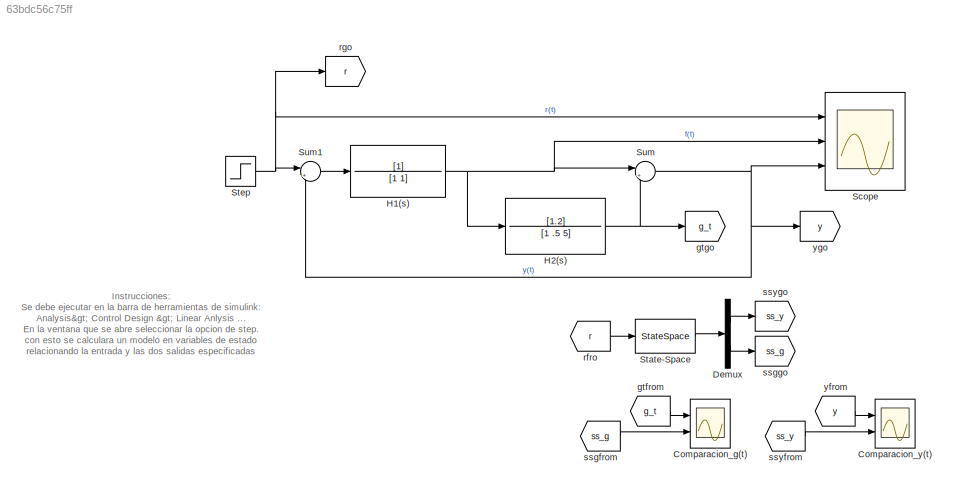
MODEL slx_63bdc56c75ff
KIND model
CONFIG AbsTol = auto
CONFIG EnableMultiTasking = off
CONFIG FixedStep = auto
CONFIG MaxStep = .1
CONFIG MinStep = auto
CONFIG RelTol = 1e-3
CONFIG SampleTimeConstraint = Unconstrained
CONFIG Solver = VariableStepAuto
CONFIG SolverName = VariableStepAuto
CONFIG StartTime = 0.0
CONFIG StopTime = 20
BLOCK [Scope] Comparacion_g(t)
  NumInputPorts = 2
  Ports = [2]
  ScopeSpecificationString = Simulink.scopes.TimeScopeBlockCfg('CurrentConfiguration', extmgr.ConfigurationSet(extmgr.Configuration('Core','General UI',true),extmgr.Configuration('Core','Source UI',true),extmgr.Configuration('Sources','WiredSimulink',true,'DataLoggingVariableName','ScopeData1'),extmgr.Configuration('Visuals','Time Domain',true,'SerializedDisplays',{struct('MinYLimReal','-0.02015','MaxYLimReal','0.18134','YLab...<+1399ch>
BLOCK [Scope] Comparacion_y(t)
  NumInputPorts = 2
  Ports = [2]
  ScopeSpecificationString = Simulink.scopes.TimeScopeBlockCfg('CurrentConfiguration', extmgr.ConfigurationSet(extmgr.Configuration('Core','General UI',true),extmgr.Configuration('Core','Source UI',true),extmgr.Configuration('Sources','WiredSimulink',true,'DataLoggingVariableName','ScopeData2'),extmgr.Configuration('Visuals','Time Domain',true,'SerializedDisplays',{struct('MinYLimReal','-0.07336','MaxYLimReal','0.66023','YLab...<+1400ch>
BLOCK [Demux] Demux
  DisplayOption = bar
  Outputs = 2
  Ports = [1, 2]
BLOCK [TransferFcn] H1(s)
  Denominator = [1 1]
BLOCK [TransferFcn] H2(s)
  Denominator = [1 .5 5]
  Numerator = [1.2]
BLOCK [Scope] Scope
  NumInputPorts = 3
  Ports = [3]
  ScopeSpecificationString = Simulink.scopes.TimeScopeBlockCfg('CurrentConfiguration', extmgr.ConfigurationSet(extmgr.Configuration('Core','General UI',true),extmgr.Configuration('Core','Source UI',true),extmgr.Configuration('Sources','WiredSimulink',true),extmgr.Configuration('Visuals','Time Domain',true,'SerializedDisplays',{struct('MinYLimReal','-0.125','MaxYLimReal','1.125','YLabelReal','','MinYLimMag','0.00000','MaxYLimM...<+1378ch>
BLOCK [StateSpace] State-Space
  A = SS.A
  B = SS.B
  C = SS.C
  D = SS.D
  Ports = [1, 1]
  X0 = 0
BLOCK [Step] Step
  SampleTime = 0
BLOCK [Sum] Sum
  IconShape = round
  InputSameDT = off
  Inputs = |++
  OutDataTypeStr = Inherit: Inherit via internal rule
  Ports = [2, 1]
  SaturateOnIntegerOverflow = off
BLOCK [Sum] Sum1
  IconShape = round
  InputSameDT = off
  Inputs = |+-
  OutDataTypeStr = Inherit: Inherit via internal rule
  Ports = [2, 1]
  SaturateOnIntegerOverflow = off
BLOCK [From] gtfrom
  GotoTag = g_t
BLOCK [Goto] gtgo
  GotoTag = g_t
BLOCK [From] rfro
  GotoTag = r
BLOCK [Goto] rgo
  GotoTag = r
BLOCK [From] ssgfrom
  GotoTag = ss_g
BLOCK [Goto] ssggo
  GotoTag = ss_g
BLOCK [From] ssyfrom
  GotoTag = ss_y
BLOCK [Goto] ssygo
  GotoTag = ss_y
BLOCK [From] yfrom
  GotoTag = y
BLOCK [Goto] ygo
  GotoTag = y
ANNOTATION (root): Instrucciones: Se debe ejecutar en la barra de herramientas de simulink: Analysis> Control Design > Linear Anlysis ... En la ventana que se abre seleccionar la opcion de step. con esto se calculara un modelo en variables de estado relacionando la entrada y las dos salidas especificadas en el modelo de simulink. Este modelo en el panel izquierdo se arrastra al panel de workspace y se le debe cambia...<+87ch>
LINE Demux:1 -> ssygo:1
LINE Demux:2 -> ssggo:1
NET H1(s):1 -> H2(s):1, Scope:2, Sum:1
NET H2(s):1 -> Sum:2, gtgo:1
LINE State-Space:1 -> Demux:1
NET Step:1 -> Scope:1, Sum1:1, rgo:1
LINE Sum1:1 -> H1(s):1
NET Sum:1 -> Scope:3, Sum1:2, ygo:1
LINE gtfrom:1 -> Comparacion_g(t):1
LINE rfro:1 -> State-Space:1
LINE ssgfrom:1 -> Comparacion_g(t):2
LINE ssyfrom:1 -> Comparacion_y(t):2
LINE yfrom:1 -> Comparacion_y(t):1
note: NET lines group one-source signal fan-out (src -> all destinations, sorted); 1:1 wires keep LINE
